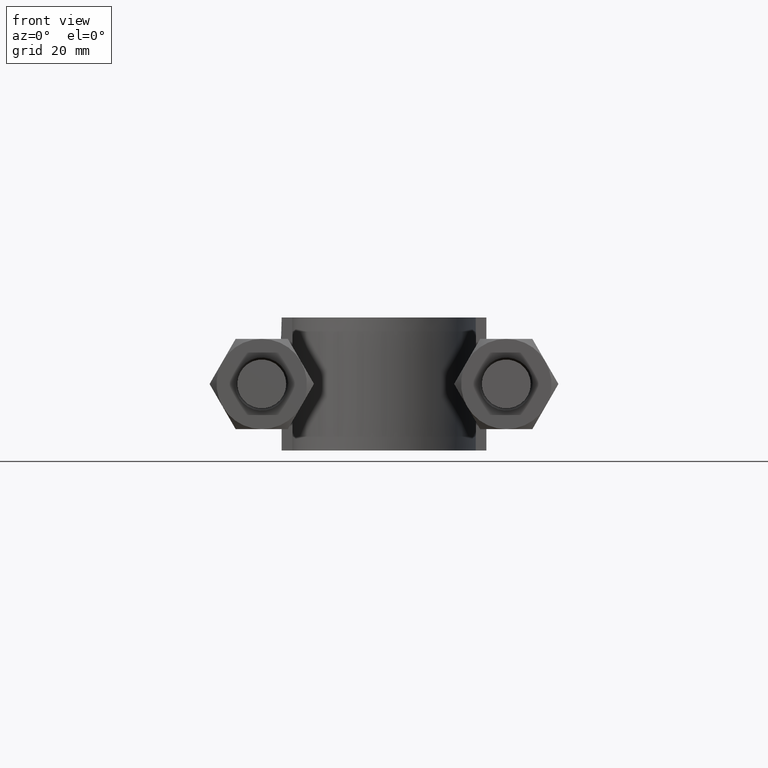
[diagram: clean part render]
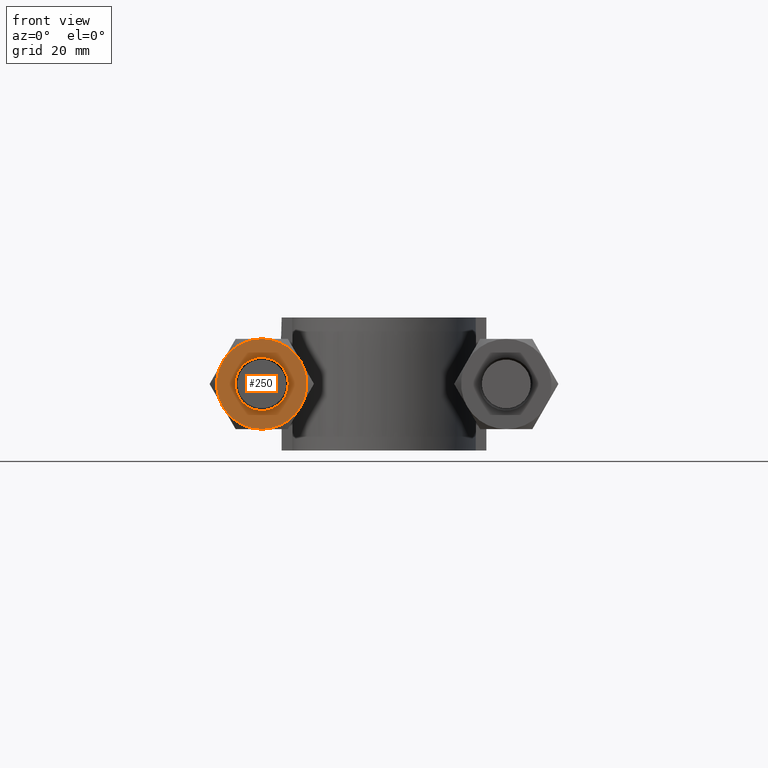
[diagram: same view with one face highlighted and labeled with its STEP entity id]
A machine part, front view. The second image highlights one B-rep face of the part: STEP entity #250.
In plain terms, the highlighted planar face has unit normal (0, 1, 0).
Its self-contained STEP definition (entity closure, byte-faithful):
#250 = ADVANCED_FACE( '', ( #368, #369 ), #370, .F. );
#368 = FACE_OUTER_BOUND( '', #1365, .T. );
#369 = FACE_BOUND( '', #1366, .T. );
#370 = PLANE( '', #1367 );
#1365 = EDGE_LOOP( '', ( #1664, #1665, #1666, #1667, #1668, #1669 ) );
#1366 = EDGE_LOOP( '', ( #1670 ) );
#1367 = AXIS2_PLACEMENT_3D( '', #1671, #1672, #1673 );
#1664 = ORIENTED_EDGE( '', *, *, #2055, .F. );
#1665 = ORIENTED_EDGE( '', *, *, #2056, .F. );
#1666 = ORIENTED_EDGE( '', *, *, #2057, .F. );
#1667 = ORIENTED_EDGE( '', *, *, #2058, .F. );
#1668 = ORIENTED_EDGE( '', *, *, #2053, .F. );
#1669 = ORIENTED_EDGE( '', *, *, #2059, .F. );
#1670 = ORIENTED_EDGE( '', *, *, #2060, .T. );
#1671 = CARTESIAN_POINT( '', ( -23.0000000000000, 20.0000000000000, 6.58164928807326E-015 ) );
#1672 = DIRECTION( '', ( 2.44921270764475E-016, 1.00000000000000, 3.06151588455594E-016 ) );
#1673 = DIRECTION( '', ( -0.866025403784439, 3.65183836637000E-016, -0.500000000000000 ) );
#2053 = EDGE_CURVE( '', #2236, #2238, #2239, .T. );
#2055 = EDGE_CURVE( '', #2241, #2242, #2243, .T. );
#2056 = EDGE_CURVE( '', #2244, #2241, #2245, .T. );
#2057 = EDGE_CURVE( '', #2246, #2244, #2247, .T. );
#2058 = EDGE_CURVE( '', #2238, #2246, #2248, .T. );
#2059 = EDGE_CURVE( '', #2242, #2236, #2249, .T. );
#2060 = EDGE_CURVE( '', #2250, #2250, #2251, .T. );
#2236 = VERTEX_POINT( '', #2676 );
#2238 = VERTEX_POINT( '', #2683 );
#2239 = CIRCLE( '', #2684, 8.50000000000000 );
#2241 = VERTEX_POINT( '', #2693 );
#2242 = VERTEX_POINT( '', #2694 );
#2243 = CIRCLE( '', #2695, 8.50000000000000 );
#2244 = VERTEX_POINT( '', #2696 );
#2245 = CIRCLE( '', #2697, 8.50000000000000 );
#2246 = VERTEX_POINT( '', #2698 );
#2247 = CIRCLE( '', #2699, 8.50000000000000 );
#2248 = CIRCLE( '', #2700, 8.50000000000000 );
#2249 = CIRCLE( '', #2701, 8.50000000000000 );
#2250 = VERTEX_POINT( '', #2702 );
#2251 = CIRCLE( '', #2703, 5.00000000000000 );
#2676 = CARTESIAN_POINT( '', ( -15.6387840678323, 20.0000000000000, 4.25000000000001 ) );
#2683 = CARTESIAN_POINT( '', ( -15.6387840678323, 20.0000000000000, -4.24999999999999 ) );
#2684 = AXIS2_PLACEMENT_3D( '', #3086, #3087, #3088 );
#2693 = CARTESIAN_POINT( '', ( -30.3612159321677, 20.0000000000000, 4.25000000000001 ) );
#2694 = CARTESIAN_POINT( '', ( -23.0000000000000, 20.0000000000000, 8.50000000000001 ) );
#2695 = AXIS2_PLACEMENT_3D( '', #3089, #3090, #3091 );
#2696 = CARTESIAN_POINT( '', ( -30.3612159321677, 20.0000000000000, -4.24999999999999 ) );
#2697 = AXIS2_PLACEMENT_3D( '', #3092, #3093, #3094 );
#2698 = CARTESIAN_POINT( '', ( -23.0000000000000, 20.0000000000000, -8.49999999999999 ) );
#2699 = AXIS2_PLACEMENT_3D( '', #3095, #3096, #3097 );
#2700 = AXIS2_PLACEMENT_3D( '', #3098, #3099, #3100 );
#2701 = AXIS2_PLACEMENT_3D( '', #3101, #3102, #3103 );
#2702 = CARTESIAN_POINT( '', ( -27.3301270189222, 20.0000000000000, -2.49999999999999 ) );
#2703 = AXIS2_PLACEMENT_3D( '', #3104, #3105, #3106 );
#3086 = CARTESIAN_POINT( '', ( -23.0000000000000, 20.0000000000000, 6.58164928807326E-015 ) );
#3087 = DIRECTION( '', ( 2.44921270764475E-016, 1.00000000000000, 3.06151588455594E-016 ) );
#3088 = DIRECTION( '', ( -0.866025403784439, 3.65183836637000E-016, -0.500000000000000 ) );
#3089 = CARTESIAN_POINT( '', ( -23.0000000000000, 20.0000000000000, 6.58164928807326E-015 ) );
#3090 = DIRECTION( '', ( 2.44921270764475E-016, 1.00000000000000, 3.06151588455594E-016 ) );
#3091 = DIRECTION( '', ( -0.866025403784439, 3.65183836637000E-016, -0.500000000000000 ) );
#3092 = CARTESIAN_POINT( '', ( -23.0000000000000, 20.0000000000000, 6.58164928807326E-015 ) );
#3093 = DIRECTION( '', ( 2.44921270764475E-016, 1.00000000000000, 3.06151588455594E-016 ) );
#3094 = DIRECTION( '', ( -0.866025403784439, 3.65183836637000E-016, -0.500000000000000 ) );
#3095 = CARTESIAN_POINT( '', ( -23.0000000000000, 20.0000000000000, 6.58164928807326E-015 ) );
#3096 = DIRECTION( '', ( 2.44921270764475E-016, 1.00000000000000, 3.06151588455594E-016 ) );
#3097 = DIRECTION( '', ( -0.866025403784439, 3.65183836637000E-016, -0.500000000000000 ) );
#3098 = CARTESIAN_POINT( '', ( -23.0000000000000, 20.0000000000000, 6.58164928807326E-015 ) );
#3099 = DIRECTION( '', ( 2.44921270764475E-016, 1.00000000000000, 3.06151588455594E-016 ) );
#3100 = DIRECTION( '', ( -0.866025403784439, 3.65183836637000E-016, -0.500000000000000 ) );
#3101 = CARTESIAN_POINT( '', ( -23.0000000000000, 20.0000000000000, 6.58164928807326E-015 ) );
#3102 = DIRECTION( '', ( 2.44921270764475E-016, 1.00000000000000, 3.06151588455594E-016 ) );
#3103 = DIRECTION( '', ( -0.866025403784439, 3.65183836637000E-016, -0.500000000000000 ) );
#3104 = CARTESIAN_POINT( '', ( -23.0000000000000, 20.0000000000000, 6.58164928807326E-015 ) );
#3105 = DIRECTION( '', ( 2.44921270764475E-016, 1.00000000000000, 3.06151588455594E-016 ) );
#3106 = DIRECTION( '', ( -0.866025403784439, 3.65183836637000E-016, -0.500000000000000 ) );